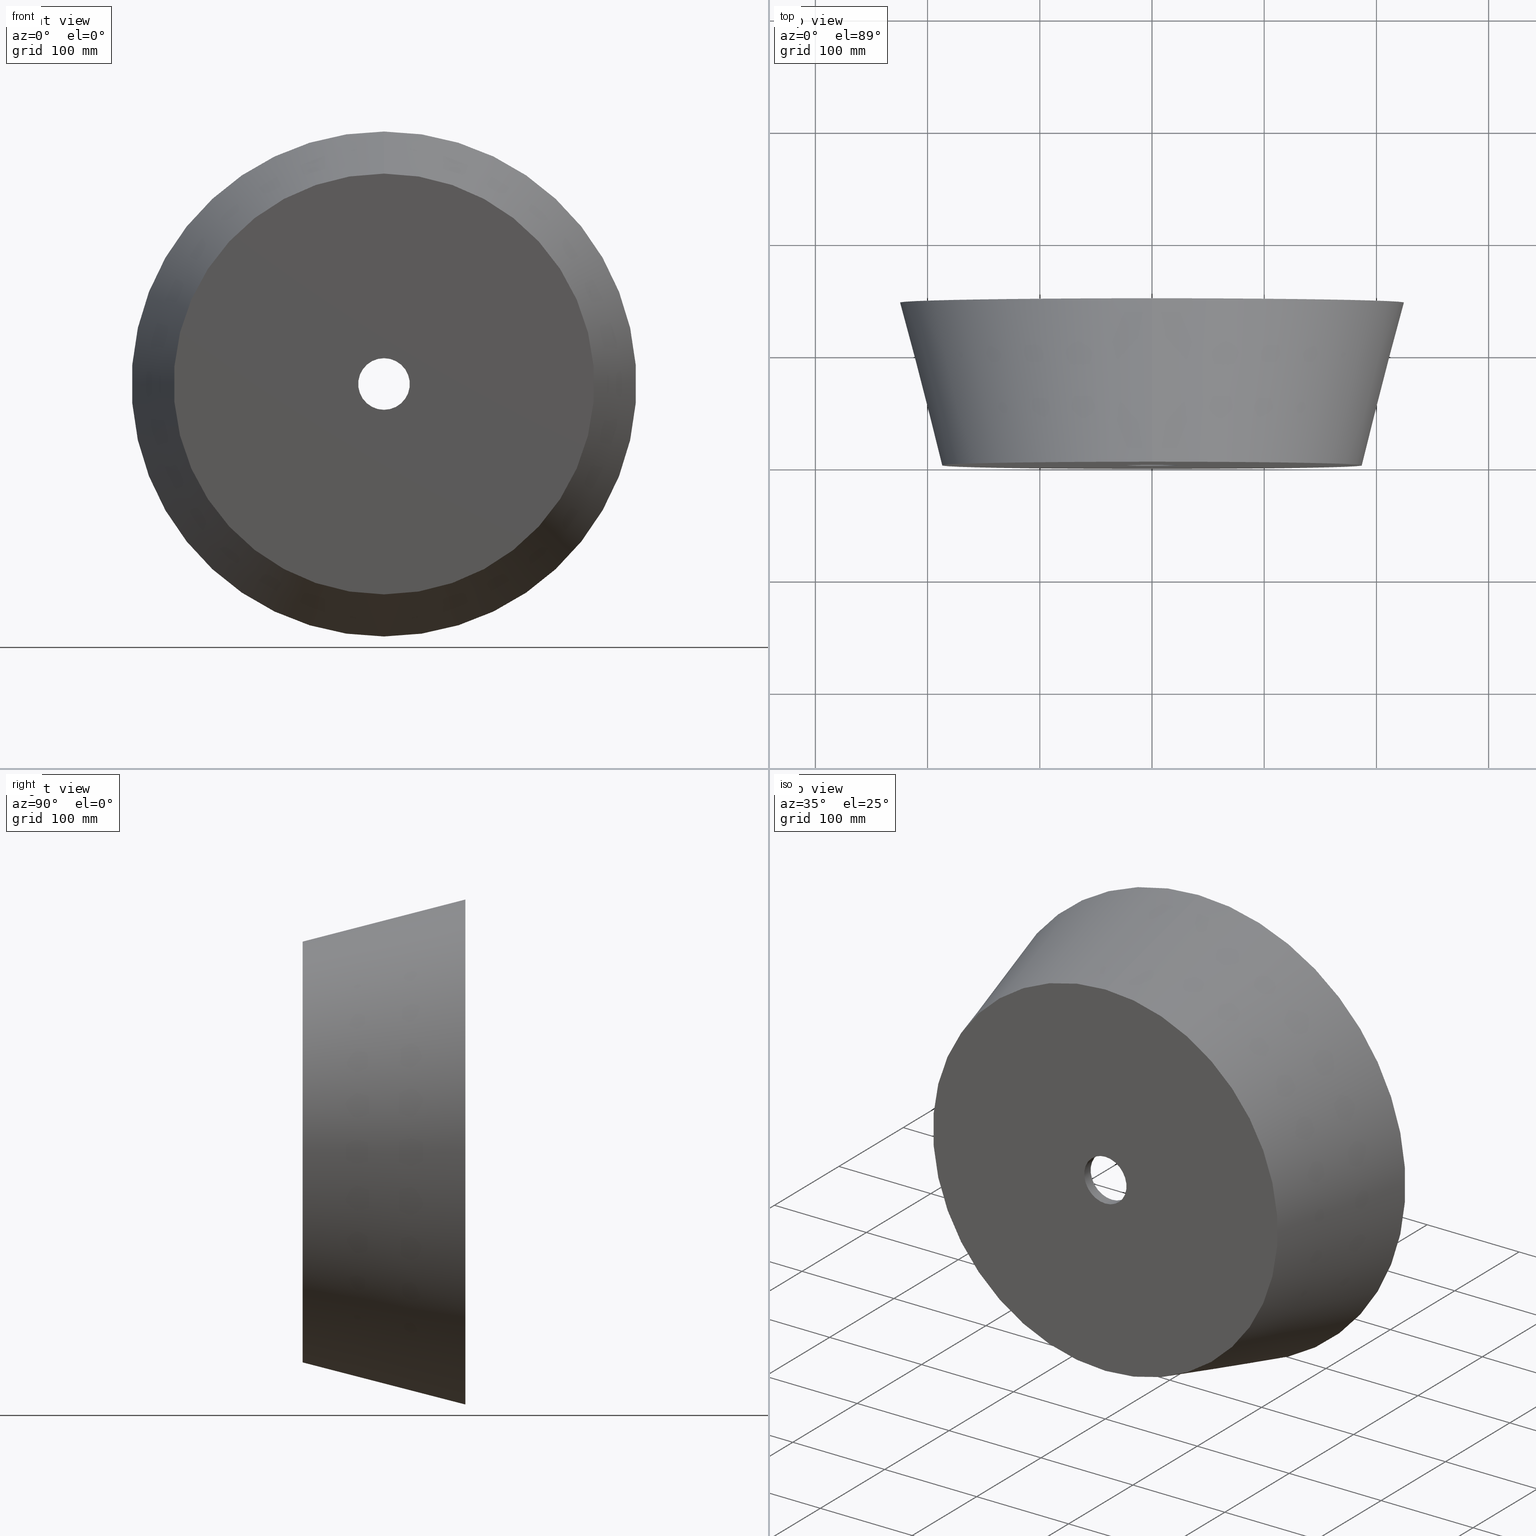
[diagram: canonical four-view strip — front | top / right | iso, engineering-drawing reading convention]
A machine part, canonical four-view strip (front | top / right | iso — engineering-drawing reading convention). The complete STEP part file that produces these views, byte-faithful:
ISO-10303-21;
HEADER;
FILE_DESCRIPTION (( 'STEP AP214' ),
    '1' );
FILE_NAME ('D600.STEP',
    '2018-06-29T09:24:52',
    ( '' ),
    ( '' ),
    'SwSTEP 2.0',
    'SolidWorks 2017',
    '' );
FILE_SCHEMA (( 'AUTOMOTIVE_DESIGN' ));
ENDSEC;

DATA;
#1 = DIRECTION ( 'NONE',  ( -0.0000000000000000000, -1.000000000000000000, -0.0000000000000000000 ) ) ;
#2 = EDGE_CURVE ( 'NONE', #60, #239, #303, .T. ) ;
#3 = CARTESIAN_POINT ( 'NONE',  ( 0.0000000000000000000, 144.9999999999999700, -210.0000000000000300 ) ) ;
#4 = ORIENTED_EDGE ( 'NONE', *, *, #281, .T. ) ;
#5 = DIRECTION ( 'NONE',  ( 0.0000000000000000000, 0.0000000000000000000, -1.000000000000000000 ) ) ;
#6 = ORIENTED_EDGE ( 'NONE', *, *, #195, .T. ) ;
#7 = APPLICATION_CONTEXT ( 'automotive_design' ) ;
#8 =( GEOMETRIC_REPRESENTATION_CONTEXT ( 3 ) GLOBAL_UNCERTAINTY_ASSIGNED_CONTEXT ( ( #227 ) ) GLOBAL_UNIT_ASSIGNED_CONTEXT ( ( #77, #276, #217 ) ) REPRESENTATION_CONTEXT ( 'NONE', 'WORKASPACE' ) );
#9 = CIRCLE ( 'NONE', #97, 210.0000000000000300 ) ;
#10 = FACE_OUTER_BOUND ( 'NONE', #194, .T. ) ;
#11 = AXIS2_PLACEMENT_3D ( 'NONE', #330, #200, #170 ) ;
#12 = DIRECTION ( 'NONE',  ( -0.0000000000000000000, -1.000000000000000000, -0.0000000000000000000 ) ) ;
#13 = DIRECTION ( 'NONE',  ( -0.0000000000000000000, -1.000000000000000000, -0.0000000000000000000 ) ) ;
#14 = DIRECTION ( 'NONE',  ( 0.0000000000000000000, 0.0000000000000000000, 1.000000000000000000 ) ) ;
#15 = PRODUCT_DEFINITION ( 'UNKNOWN', '', #27, #55 ) ;
#16 = FACE_BOUND ( 'NONE', #270, .T. ) ;
#17 = VERTEX_POINT ( 'NONE', #246 ) ;
#18 = CARTESIAN_POINT ( 'NONE',  ( 0.0000000000000000000, 144.9999999999999400, 0.0000000000000000000 ) ) ;
#19 = AXIS2_PLACEMENT_3D ( 'NONE', #187, #72, #327 ) ;
#20 = DIRECTION ( 'NONE',  ( 0.0000000000000000000, 1.000000000000000000, 0.0000000000000000000 ) ) ;
#21 = ORIENTED_EDGE ( 'NONE', *, *, #40, .T. ) ;
#22 = DIRECTION ( 'NONE',  ( 0.0000000000000000000, 0.0000000000000000000, -1.000000000000000000 ) ) ;
#23 = CARTESIAN_POINT ( 'NONE',  ( 2.755455298081544900E-014, 144.9999999999999400, -225.0000000000000300 ) ) ;
#24 = EDGE_CURVE ( 'NONE', #198, #112, #108, .T. ) ;
#25 = CARTESIAN_POINT ( 'NONE',  ( 0.0000000000000000000, 9.999999999999992900, 0.0000000000000000000 ) ) ;
#26 = EDGE_LOOP ( 'NONE', ( #182, #241, #324, #176 ) ) ;
#27 = PRODUCT_DEFINITION_FORMATION_WITH_SPECIFIED_SOURCE ( 'ANY', '', #53, .NOT_KNOWN. ) ;
#28 = PRESENTATION_STYLE_ASSIGNMENT (( #208 ) ) ;
#29 = DIRECTION ( 'NONE',  ( 3.066305214852269800E-017, 0.9681469116116011600, -0.2503828219685178500 ) ) ;
#30 = DIRECTION ( 'NONE',  ( -0.0000000000000000000, -1.000000000000000000, -0.0000000000000000000 ) ) ;
#31 = AXIS2_PLACEMENT_3D ( 'NONE', #18, #171, #39 ) ;
#32 = EDGE_LOOP ( 'NONE', ( #212, #4, #35, #292 ) ) ;
#33 = MECHANICAL_DESIGN_GEOMETRIC_PRESENTATION_REPRESENTATION (  '', ( #222 ), #8 ) ;
#34 = ORIENTED_EDGE ( 'NONE', *, *, #304, .F. ) ;
#35 = ORIENTED_EDGE ( 'NONE', *, *, #78, .T. ) ;
#36 = CARTESIAN_POINT ( 'NONE',  ( 0.0000000000000000000, 0.0000000000000000000, 0.0000000000000000000 ) ) ;
#37 = FACE_OUTER_BOUND ( 'NONE', #234, .T. ) ;
#38 = ADVANCED_FACE ( 'NONE', ( #183 ), #312, .T. ) ;
#39 = DIRECTION ( 'NONE',  ( 0.0000000000000000000, 0.0000000000000000000, 1.000000000000000000 ) ) ;
#40 = EDGE_CURVE ( 'NONE', #309, #60, #128, .T. ) ;
#41 = CIRCLE ( 'NONE', #107, 23.00000000000000000 ) ;
#42 = AXIS2_PLACEMENT_3D ( 'NONE', #76, #159, #186 ) ;
#43 = SURFACE_SIDE_STYLE ('',( #283 ) ) ;
#44 = ORIENTED_EDGE ( 'NONE', *, *, #310, .F. ) ;
#45 = EDGE_CURVE ( 'NONE', #151, #162, #87, .T. ) ;
#46 = CIRCLE ( 'NONE', #42, 187.5000000000000000 ) ;
#47 = EDGE_CURVE ( 'NONE', #169, #199, #61, .T. ) ;
#48 = DIRECTION ( 'NONE',  ( 0.0000000000000000000, 1.000000000000000000, 0.0000000000000000000 ) ) ;
#49 = CARTESIAN_POINT ( 'NONE',  ( 2.816687638038912400E-015, 0.0000000000000000000, 23.00000000000000000 ) ) ;
#50 = EDGE_CURVE ( 'NONE', #162, #112, #157, .T. ) ;
#51 = PRODUCT_DEFINITION_SHAPE ( 'NONE', 'NONE',  #213 ) ;
#52 = TOROIDAL_SURFACE ( 'NONE', #320, 34.91753592594194800, 185.1154769049753700 ) ;
#53 = PRODUCT ( 'D600', 'D600', '', ( #308 ) ) ;
#54 = ORIENTED_EDGE ( 'NONE', *, *, #134, .T. ) ;
#55 = PRODUCT_DEFINITION_CONTEXT ( 'detailed design', #133, 'design' ) ;
#56 = COLOUR_RGB ( '',1.000000000000000000, 1.000000000000000000, 1.000000000000000000 ) ;
#57 = MANIFOLD_SOLID_BREP ( 'Rotation1', #106 ) ;
#58 = APPLICATION_PROTOCOL_DEFINITION ( 'draft international standard', 'automotive_design', 1998, #229 ) ;
#59 = PRODUCT_CONTEXT ( 'NONE', #7, 'mechanical' ) ;
#60 = VERTEX_POINT ( 'NONE', #279 ) ;
#61 = LINE ( 'NONE', #311, #85 ) ;
#62 = EDGE_CURVE ( 'NONE', #199, #216, #41, .T. ) ;
#63 = CIRCLE ( 'NONE', #185, 225.0000000000000300 ) ;
#64 = PRESENTATION_LAYER_ASSIGNMENT (  '', '', ( #172 ) ) ;
#65 = CARTESIAN_POINT ( 'NONE',  ( 2.816687638038912400E-015, 0.0000000000000000000, 23.00000000000000000 ) ) ;
#66 = DIRECTION ( 'NONE',  ( -0.0000000000000000000, -1.000000000000000000, -0.0000000000000000000 ) ) ;
#67 = AXIS2_PLACEMENT_3D ( 'NONE', #291, #318, #14 ) ;
#68 = EDGE_LOOP ( 'NONE', ( #189, #264, #244, #192 ) ) ;
#69 = CARTESIAN_POINT ( 'NONE',  ( 2.816687638038912400E-015, 9.999999999999992900, -23.00000000000000000 ) ) ;
#70 =( LENGTH_UNIT ( ) NAMED_UNIT ( * ) SI_UNIT ( .MILLI., .METRE. ) );
#71 = CONICAL_SURFACE ( 'NONE', #297, 225.0000000000000300, 0.2530756521646025900 ) ;
#72 = DIRECTION ( 'NONE',  ( 0.0000000000000000000, 1.000000000000000000, 0.0000000000000000000 ) ) ;
#73 = PRODUCT_DEFINITION_FORMATION_WITH_SPECIFIED_SOURCE ( 'ANY', '', #221, .NOT_KNOWN. ) ;
#74 = CARTESIAN_POINT ( 'NONE',  ( 0.0000000000000000000, 9.999999999999992900, -23.00000000000000000 ) ) ;
#75 = VERTEX_POINT ( 'NONE', #197 ) ;
#76 = CARTESIAN_POINT ( 'NONE',  ( 0.0000000000000000000, -2.081668171172168500E-014, 0.0000000000000000000 ) ) ;
#77 =( LENGTH_UNIT ( ) NAMED_UNIT ( * ) SI_UNIT ( .MILLI., .METRE. ) );
#78 = EDGE_CURVE ( 'NONE', #17, #239, #63, .T. ) ;
#79 = PRESENTATION_STYLE_ASSIGNMENT (( #300 ) ) ;
#80 = FACE_OUTER_BOUND ( 'NONE', #90, .T. ) ;
#81 = AXIS2_PLACEMENT_3D ( 'NONE', #99, #102, #317 ) ;
#82 = DIRECTION ( 'NONE',  ( -0.0000000000000000000, -1.000000000000000000, -0.0000000000000000000 ) ) ;
#83 = EDGE_CURVE ( 'NONE', #151, #216, #123, .T. ) ;
#84 = CIRCLE ( 'NONE', #178, 185.1154769049753700 ) ;
#85 = VECTOR ( 'NONE', #259, 1000.000000000000000 ) ;
#86 = MECHANICAL_DESIGN_GEOMETRIC_PRESENTATION_REPRESENTATION (  '', ( #172 ), #173 ) ;
#87 = LINE ( 'NONE', #296, #299 ) ;
#88 = CARTESIAN_POINT ( 'NONE',  ( 0.0000000000000000000, 144.9999999999999400, 225.0000000000000300 ) ) ;
#89 = ADVANCED_FACE ( 'NONE', ( #16, #37 ), #93, .F. ) ;
#90 = EDGE_LOOP ( 'NONE', ( #254, #136, #158, #95 ) ) ;
#91 = EDGE_CURVE ( 'NONE', #169, #151, #250, .T. ) ;
#92 = CARTESIAN_POINT ( 'NONE',  ( -225.0000000000000300, 144.9999999999999700, 0.0000000000000000000 ) ) ;
#93 = PLANE ( 'NONE',  #109 ) ;
#94 = EDGE_CURVE ( 'NONE', #169, #112, #237, .T. ) ;
#95 = ORIENTED_EDGE ( 'NONE', *, *, #257, .F. ) ;
#96 = FACE_OUTER_BOUND ( 'NONE', #205, .T. ) ;
#97 = AXIS2_PLACEMENT_3D ( 'NONE', #290, #13, #331 ) ;
#98 = CARTESIAN_POINT ( 'NONE',  ( 0.0000000000000000000, 19.99999999999999300, 0.0000000000000000000 ) ) ;
#99 = CARTESIAN_POINT ( 'NONE',  ( 0.0000000000000000000, 0.0000000000000000000, 0.0000000000000000000 ) ) ;
#100 = PRODUCT_RELATED_PRODUCT_CATEGORY ( 'part', '', ( #53 ) ) ;
#101 = VECTOR ( 'NONE', #225, 1000.000000000000200 ) ;
#102 = DIRECTION ( 'NONE',  ( -0.0000000000000000000, -1.000000000000000000, -0.0000000000000000000 ) ) ;
#103 = DIRECTION ( 'NONE',  ( 0.0000000000000000000, 0.0000000000000000000, -1.000000000000000000 ) ) ;
#104 = FILL_AREA_STYLE ('',( #289 ) ) ;
#105 = FACE_OUTER_BOUND ( 'NONE', #26, .T. ) ;
#106 = CLOSED_SHELL ( 'NONE', ( #322, #201, #38, #265, #141, #262, #164, #89, #115, #130 ) ) ;
#107 = AXIS2_PLACEMENT_3D ( 'NONE', #148, #1, #294 ) ;
#108 = CIRCLE ( 'NONE', #67, 185.1154769049753700 ) ;
#109 = AXIS2_PLACEMENT_3D ( 'NONE', #111, #113, #147 ) ;
#110 = APPLICATION_PROTOCOL_DEFINITION ( 'draft international standard', 'automotive_design', 1998, #133 ) ;
#111 = CARTESIAN_POINT ( 'NONE',  ( -23.00000000000000000, -1.040834085586084300E-014, 0.0000000000000000000 ) ) ;
#112 = VERTEX_POINT ( 'NONE', #238 ) ;
#113 = DIRECTION ( 'NONE',  ( 0.0000000000000000000, 1.000000000000000000, 0.0000000000000000000 ) ) ;
#114 = CARTESIAN_POINT ( 'NONE',  ( 0.0000000000000000000, 144.9999999999999400, 0.0000000000000000000 ) ) ;
#115 = ADVANCED_FACE ( 'NONE', ( #96 ), #245, .F. ) ;
#116 = SURFACE_STYLE_FILL_AREA ( #104 ) ;
#117 = CARTESIAN_POINT ( 'NONE',  ( 0.0000000000000000000, 0.0000000000000000000, 0.0000000000000000000 ) ) ;
#118 = DIRECTION ( 'NONE',  ( -0.0000000000000000000, -1.000000000000000000, -0.0000000000000000000 ) ) ;
#119 = ORIENTED_EDGE ( 'NONE', *, *, #83, .T. ) ;
#120 = FACE_BOUND ( 'NONE', #280, .T. ) ;
#121 = DIRECTION ( 'NONE',  ( 0.0000000000000000000, 0.0000000000000000000, -1.000000000000000000 ) ) ;
#122 = DIRECTION ( 'NONE',  ( 0.0000000000000000000, 0.0000000000000000000, 1.000000000000000000 ) ) ;
#123 = LINE ( 'NONE', #65, #255 ) ;
#124 = DIRECTION ( 'NONE',  ( 0.0000000000000000000, 0.0000000000000000000, -1.000000000000000000 ) ) ;
#125 = CONICAL_SURFACE ( 'NONE', #248, 23.00000000000000000, 0.8726646259971591000 ) ;
#126 = EDGE_CURVE ( 'NONE', #75, #162, #84, .T. ) ;
#127 = ORIENTED_EDGE ( 'NONE', *, *, #134, .F. ) ;
#128 = CIRCLE ( 'NONE', #11, 187.5000000000000000 ) ;
#129 = FACE_OUTER_BOUND ( 'NONE', #218, .T. ) ;
#130 = ADVANCED_FACE ( 'NONE', ( #80 ), #125, .F. ) ;
#131 = CYLINDRICAL_SURFACE ( 'NONE', #140, 23.00000000000000000 ) ;
#132 = CIRCLE ( 'NONE', #190, 210.0000000000000300 ) ;
#133 = APPLICATION_CONTEXT ( 'automotive_design' ) ;
#134 = EDGE_CURVE ( 'NONE', #239, #17, #181, .T. ) ;
#135 = DIRECTION ( 'NONE',  ( -0.0000000000000000000, -1.000000000000000000, -0.0000000000000000000 ) ) ;
#136 = ORIENTED_EDGE ( 'NONE', *, *, #91, .T. ) ;
#137 = DIRECTION ( 'NONE',  ( -0.0000000000000000000, -1.000000000000000000, -0.0000000000000000000 ) ) ;
#138 = DIRECTION ( 'NONE',  ( 0.0000000000000000000, 0.0000000000000000000, -1.000000000000000000 ) ) ;
#139 = DIRECTION ( 'NONE',  ( 0.0000000000000000000, 0.0000000000000000000, -1.000000000000000000 ) ) ;
#140 = AXIS2_PLACEMENT_3D ( 'NONE', #117, #235, #149 ) ;
#141 = ADVANCED_FACE ( 'NONE', ( #105 ), #203, .F. ) ;
#142 =( NAMED_UNIT ( * ) SI_UNIT ( $, .STERADIAN. ) SOLID_ANGLE_UNIT ( ) );
#143 = AXIS2_PLACEMENT_3D ( 'NONE', #36, #233, #321 ) ;
#144 = DIRECTION ( 'NONE',  ( 9.381338752702686400E-017, 0.6427876096865436900, -0.7660444431189743500 ) ) ;
#145 =( NAMED_UNIT ( * ) PLANE_ANGLE_UNIT ( ) SI_UNIT ( $, .RADIAN. ) );
#146 = CARTESIAN_POINT ( 'NONE',  ( 4.276164860581751400E-015, 205.1154769049753400, 34.91753592594194800 ) ) ;
#147 = DIRECTION ( 'NONE',  ( 0.0000000000000000000, -0.0000000000000000000, 1.000000000000000000 ) ) ;
#148 = CARTESIAN_POINT ( 'NONE',  ( 0.0000000000000000000, 0.0000000000000000000, 0.0000000000000000000 ) ) ;
#149 = DIRECTION ( 'NONE',  ( 0.0000000000000000000, 0.0000000000000000000, -1.000000000000000000 ) ) ;
#150 = EDGE_LOOP ( 'NONE', ( #307, #44, #302, #54 ) ) ;
#151 = VERTEX_POINT ( 'NONE', #163 ) ;
#152 = DIRECTION ( 'NONE',  ( 0.0000000000000000000, 0.0000000000000000000, -1.000000000000000000 ) ) ;
#153 = SHAPE_DEFINITION_REPRESENTATION ( #51, #223 ) ;
#154 = PRODUCT_DEFINITION_SHAPE ( 'NONE', 'NONE',  #15 ) ;
#155 =( GEOMETRIC_REPRESENTATION_CONTEXT ( 3 ) GLOBAL_UNCERTAINTY_ASSIGNED_CONTEXT ( ( #267 ) ) GLOBAL_UNIT_ASSIGNED_CONTEXT ( ( #70, #145, #142 ) ) REPRESENTATION_CONTEXT ( 'NONE', 'WORKASPACE' ) );
#156 = APPLICATION_PROTOCOL_DEFINITION ( 'draft international standard', 'automotive_design', 1998, #180 ) ;
#157 = CIRCLE ( 'NONE', #242, 34.91753592594196200 ) ;
#158 = ORIENTED_EDGE ( 'NONE', *, *, #45, .T. ) ;
#159 = DIRECTION ( 'NONE',  ( -0.0000000000000000000, -1.000000000000000000, -0.0000000000000000000 ) ) ;
#160 = DIRECTION ( 'NONE',  ( -0.0000000000000000000, -1.000000000000000000, -0.0000000000000000000 ) ) ;
#161 = CIRCLE ( 'NONE', #215, 23.00000000000000000 ) ;
#162 = VERTEX_POINT ( 'NONE', #293 ) ;
#163 = CARTESIAN_POINT ( 'NONE',  ( 2.816687638038912400E-015, 9.999999999999992900, 23.00000000000000000 ) ) ;
#164 = ADVANCED_FACE ( 'NONE', ( #251 ), #71, .T. ) ;
#165 = DIRECTION ( 'NONE',  ( 1.000000000000000000, 0.0000000000000000000, -1.224646799147353200E-016 ) ) ;
#166 = PRESENTATION_LAYER_ASSIGNMENT (  '', '', ( #222 ) ) ;
#167 = DIRECTION ( 'NONE',  ( 0.0000000000000000000, 0.0000000000000000000, 1.000000000000000000 ) ) ;
#168 = CARTESIAN_POINT ( 'NONE',  ( 0.0000000000000000000, 205.1154769049753400, 0.0000000000000000000 ) ) ;
#169 = VERTEX_POINT ( 'NONE', #74 ) ;
#170 = DIRECTION ( 'NONE',  ( 0.0000000000000000000, 0.0000000000000000000, -1.000000000000000000 ) ) ;
#171 = DIRECTION ( 'NONE',  ( 0.0000000000000000000, 1.000000000000000000, 0.0000000000000000000 ) ) ;
#172 = STYLED_ITEM ( 'NONE', ( #28 ), #57 ) ;
#173 =( GEOMETRIC_REPRESENTATION_CONTEXT ( 3 ) GLOBAL_UNCERTAINTY_ASSIGNED_CONTEXT ( ( #273 ) ) GLOBAL_UNIT_ASSIGNED_CONTEXT ( ( #191, #174, #231 ) ) REPRESENTATION_CONTEXT ( 'NONE', 'WORKASPACE' ) );
#174 =( NAMED_UNIT ( * ) PLANE_ANGLE_UNIT ( ) SI_UNIT ( $, .RADIAN. ) );
#175 = ORIENTED_EDGE ( 'NONE', *, *, #94, .T. ) ;
#176 = ORIENTED_EDGE ( 'NONE', *, *, #257, .T. ) ;
#177 = ORIENTED_EDGE ( 'NONE', *, *, #47, .F. ) ;
#178 = AXIS2_PLACEMENT_3D ( 'NONE', #146, #165, #323 ) ;
#179 = EDGE_CURVE ( 'NONE', #151, #169, #161, .T. ) ;
#180 = APPLICATION_CONTEXT ( 'automotive_design' ) ;
#181 = CIRCLE ( 'NONE', #263, 225.0000000000000300 ) ;
#182 = ORIENTED_EDGE ( 'NONE', *, *, #126, .F. ) ;
#183 = FACE_OUTER_BOUND ( 'NONE', #32, .T. ) ;
#184 = FILL_AREA_STYLE ('',( #305 ) ) ;
#185 = AXIS2_PLACEMENT_3D ( 'NONE', #114, #261, #139 ) ;
#186 = DIRECTION ( 'NONE',  ( 0.0000000000000000000, 0.0000000000000000000, -1.000000000000000000 ) ) ;
#187 = CARTESIAN_POINT ( 'NONE',  ( 0.0000000000000000000, 9.999999999999992900, 0.0000000000000000000 ) ) ;
#188 = ORIENTED_EDGE ( 'NONE', *, *, #83, .F. ) ;
#189 = ORIENTED_EDGE ( 'NONE', *, *, #195, .F. ) ;
#190 = AXIS2_PLACEMENT_3D ( 'NONE', #211, #160, #22 ) ;
#191 =( LENGTH_UNIT ( ) NAMED_UNIT ( * ) SI_UNIT ( .MILLI., .METRE. ) );
#192 = ORIENTED_EDGE ( 'NONE', *, *, #24, .F. ) ;
#193 = DIRECTION ( 'NONE',  ( -0.0000000000000000000, -1.000000000000000000, -0.0000000000000000000 ) ) ;
#194 = EDGE_LOOP ( 'NONE', ( #236, #119, #287, #177 ) ) ;
#195 = EDGE_CURVE ( 'NONE', #75, #198, #132, .T. ) ;
#196 = DIRECTION ( 'NONE',  ( 0.0000000000000000000, 0.0000000000000000000, -1.000000000000000000 ) ) ;
#197 = CARTESIAN_POINT ( 'NONE',  ( 2.571758278209442200E-014, 144.9999999999999700, 210.0000000000000300 ) ) ;
#198 = VERTEX_POINT ( 'NONE', #3 ) ;
#199 = VERTEX_POINT ( 'NONE', #272 ) ;
#200 = DIRECTION ( 'NONE',  ( -0.0000000000000000000, -1.000000000000000000, -0.0000000000000000000 ) ) ;
#201 = ADVANCED_FACE ( 'NONE', ( #10 ), #131, .F. ) ;
#202 = ORIENTED_EDGE ( 'NONE', *, *, #179, .T. ) ;
#203 = TOROIDAL_SURFACE ( 'NONE', #219, 34.91753592594194800, 185.1154769049753700 ) ;
#204 = COLOUR_RGB ( '',1.000000000000000000, 1.000000000000000000, 1.000000000000000000 ) ;
#205 = EDGE_LOOP ( 'NONE', ( #188, #214, #271, #315 ) ) ;
#206 = EDGE_LOOP ( 'NONE', ( #202, #175, #240, #277 ) ) ;
#207 = CIRCLE ( 'NONE', #285, 23.00000000000000000 ) ;
#208 = SURFACE_STYLE_USAGE ( .BOTH. , #230 ) ;
#209 = DIRECTION ( 'NONE',  ( 0.0000000000000000000, 0.0000000000000000000, 1.000000000000000000 ) ) ;
#210 = FACE_OUTER_BOUND ( 'NONE', #206, .T. ) ;
#211 = CARTESIAN_POINT ( 'NONE',  ( 0.0000000000000000000, 144.9999999999999700, 0.0000000000000000000 ) ) ;
#212 = ORIENTED_EDGE ( 'NONE', *, *, #40, .F. ) ;
#213 = PRODUCT_DEFINITION ( 'UNKNOWN', '', #73, #326 ) ;
#214 = ORIENTED_EDGE ( 'NONE', *, *, #91, .F. ) ;
#215 = AXIS2_PLACEMENT_3D ( 'NONE', #226, #137, #103 ) ;
#216 = VERTEX_POINT ( 'NONE', #49 ) ;
#217 =( NAMED_UNIT ( * ) SI_UNIT ( $, .STERADIAN. ) SOLID_ANGLE_UNIT ( ) );
#218 = EDGE_LOOP ( 'NONE', ( #127, #282 ) ) ;
#219 = AXIS2_PLACEMENT_3D ( 'NONE', #168, #66, #266 ) ;
#220 = FACE_OUTER_BOUND ( 'NONE', #68, .T. ) ;
#221 = PRODUCT ( 'D600', 'D600', '', ( #59 ) ) ;
#222 = STYLED_ITEM ( 'NONE', ( #79 ), #223 ) ;
#223 = ADVANCED_BREP_SHAPE_REPRESENTATION ( 'D600', ( #57, #143 ), #155 ) ;
#224 = AXIS2_PLACEMENT_3D ( 'NONE', #306, #135, #196 ) ;
#225 = DIRECTION ( 'NONE',  ( 0.0000000000000000000, 0.9681469116116011600, 0.2503828219685178500 ) ) ;
#226 = CARTESIAN_POINT ( 'NONE',  ( 0.0000000000000000000, 9.999999999999992900, 0.0000000000000000000 ) ) ;
#227 = UNCERTAINTY_MEASURE_WITH_UNIT (LENGTH_MEASURE( 1.000000000000000100E-005 ), #77, 'distance_accuracy_value', 'NONE');
#228 = VECTOR ( 'NONE', #144, 999.9999999999998900 ) ;
#229 = APPLICATION_CONTEXT ( 'automotive_design' ) ;
#230 = SURFACE_SIDE_STYLE ('',( #116 ) ) ;
#231 =( NAMED_UNIT ( * ) SI_UNIT ( $, .STERADIAN. ) SOLID_ANGLE_UNIT ( ) );
#232 = ORIENTED_EDGE ( 'NONE', *, *, #310, .T. ) ;
#233 = DIRECTION ( 'NONE',  ( 0.0000000000000000000, 0.0000000000000000000, 1.000000000000000000 ) ) ;
#234 = EDGE_LOOP ( 'NONE', ( #232, #21 ) ) ;
#235 = DIRECTION ( 'NONE',  ( -0.0000000000000000000, -1.000000000000000000, -0.0000000000000000000 ) ) ;
#236 = ORIENTED_EDGE ( 'NONE', *, *, #179, .F. ) ;
#237 = LINE ( 'NONE', #69, #228 ) ;
#238 = CARTESIAN_POINT ( 'NONE',  ( 0.0000000000000000000, 19.99999999999999300, -34.91753592594196200 ) ) ;
#239 = VERTEX_POINT ( 'NONE', #88 ) ;
#240 = ORIENTED_EDGE ( 'NONE', *, *, #50, .F. ) ;
#241 = ORIENTED_EDGE ( 'NONE', *, *, #313, .F. ) ;
#242 = AXIS2_PLACEMENT_3D ( 'NONE', #316, #82, #121 ) ;
#243 = DIRECTION ( 'NONE',  ( -0.0000000000000000000, -1.000000000000000000, -0.0000000000000000000 ) ) ;
#244 = ORIENTED_EDGE ( 'NONE', *, *, #50, .T. ) ;
#245 = CYLINDRICAL_SURFACE ( 'NONE', #81, 23.00000000000000000 ) ;
#246 = CARTESIAN_POINT ( 'NONE',  ( 2.755455298081544900E-014, 144.9999999999999400, -225.0000000000000300 ) ) ;
#247 = DIRECTION ( 'NONE',  ( 0.0000000000000000000, -1.000000000000000000, -0.0000000000000000000 ) ) ;
#248 = AXIS2_PLACEMENT_3D ( 'NONE', #25, #48, #209 ) ;
#249 = CIRCLE ( 'NONE', #284, 34.91753592594196200 ) ;
#250 = CIRCLE ( 'NONE', #224, 23.00000000000000000 ) ;
#251 = FACE_OUTER_BOUND ( 'NONE', #150, .T. ) ;
#252 = DIRECTION ( 'NONE',  ( 1.000000000000000000, 0.0000000000000000000, 0.0000000000000000000 ) ) ;
#253 = CARTESIAN_POINT ( 'NONE',  ( 0.0000000000000000000, 144.9999999999999400, 225.0000000000000300 ) ) ;
#254 = ORIENTED_EDGE ( 'NONE', *, *, #94, .F. ) ;
#255 = VECTOR ( 'NONE', #118, 1000.000000000000000 ) ;
#256 = CARTESIAN_POINT ( 'NONE',  ( 2.525834023241416200E-014, -2.081668171172168500E-014, -187.5000000000000000 ) ) ;
#257 = EDGE_CURVE ( 'NONE', #112, #162, #249, .T. ) ;
#258 = APPLICATION_PROTOCOL_DEFINITION ( 'draft international standard', 'automotive_design', 1998, #7 ) ;
#259 = DIRECTION ( 'NONE',  ( -0.0000000000000000000, -1.000000000000000000, -0.0000000000000000000 ) ) ;
#260 = DIRECTION ( 'NONE',  ( 0.0000000000000000000, 0.0000000000000000000, -1.000000000000000000 ) ) ;
#261 = DIRECTION ( 'NONE',  ( -0.0000000000000000000, -1.000000000000000000, -0.0000000000000000000 ) ) ;
#262 = ADVANCED_FACE ( 'NONE', ( #129, #120 ), #329, .F. ) ;
#263 = AXIS2_PLACEMENT_3D ( 'NONE', #288, #243, #260 ) ;
#264 = ORIENTED_EDGE ( 'NONE', *, *, #126, .T. ) ;
#265 = ADVANCED_FACE ( 'NONE', ( #220 ), #52, .F. ) ;
#266 = DIRECTION ( 'NONE',  ( 0.0000000000000000000, 0.0000000000000000000, -1.000000000000000000 ) ) ;
#267 = UNCERTAINTY_MEASURE_WITH_UNIT (LENGTH_MEASURE( 1.000000000000000100E-005 ), #70, 'distance_accuracy_value', 'NONE');
#268 = AXIS2_PLACEMENT_3D ( 'NONE', #92, #247, #5 ) ;
#269 = CARTESIAN_POINT ( 'NONE',  ( 0.0000000000000000000, 0.0000000000000000000, 0.0000000000000000000 ) ) ;
#270 = EDGE_LOOP ( 'NONE', ( #295, #34 ) ) ;
#271 = ORIENTED_EDGE ( 'NONE', *, *, #47, .T. ) ;
#272 = CARTESIAN_POINT ( 'NONE',  ( 0.0000000000000000000, 0.0000000000000000000, -23.00000000000000000 ) ) ;
#273 = UNCERTAINTY_MEASURE_WITH_UNIT (LENGTH_MEASURE( 1.000000000000000100E-005 ), #191, 'distance_accuracy_value', 'NONE');
#274 = DIRECTION ( 'NONE',  ( 0.0000000000000000000, 0.6427876096865436900, 0.7660444431189743500 ) ) ;
#275 = PRODUCT_RELATED_PRODUCT_CATEGORY ( 'part', '', ( #221 ) ) ;
#276 =( NAMED_UNIT ( * ) PLANE_ANGLE_UNIT ( ) SI_UNIT ( $, .RADIAN. ) );
#277 = ORIENTED_EDGE ( 'NONE', *, *, #45, .F. ) ;
#278 = CARTESIAN_POINT ( 'NONE',  ( 0.0000000000000000000, 144.9999999999999400, 0.0000000000000000000 ) ) ;
#279 = CARTESIAN_POINT ( 'NONE',  ( 0.0000000000000000000, -2.081668171172168500E-014, 187.5000000000000000 ) ) ;
#280 = EDGE_LOOP ( 'NONE', ( #286, #6 ) ) ;
#281 = EDGE_CURVE ( 'NONE', #309, #17, #328, .T. ) ;
#282 = ORIENTED_EDGE ( 'NONE', *, *, #78, .F. ) ;
#283 = SURFACE_STYLE_FILL_AREA ( #184 ) ;
#284 = AXIS2_PLACEMENT_3D ( 'NONE', #98, #30, #138 ) ;
#285 = AXIS2_PLACEMENT_3D ( 'NONE', #269, #193, #124 ) ;
#286 = ORIENTED_EDGE ( 'NONE', *, *, #313, .T. ) ;
#287 = ORIENTED_EDGE ( 'NONE', *, *, #304, .T. ) ;
#288 = CARTESIAN_POINT ( 'NONE',  ( 0.0000000000000000000, 144.9999999999999400, 0.0000000000000000000 ) ) ;
#289 = FILL_AREA_STYLE_COLOUR ( '', #56 ) ;
#290 = CARTESIAN_POINT ( 'NONE',  ( 0.0000000000000000000, 144.9999999999999700, 0.0000000000000000000 ) ) ;
#291 = CARTESIAN_POINT ( 'NONE',  ( 0.0000000000000000000, 205.1154769049753400, -34.91753592594194800 ) ) ;
#292 = ORIENTED_EDGE ( 'NONE', *, *, #2, .F. ) ;
#293 = CARTESIAN_POINT ( 'NONE',  ( 1.499687382133808800E-014, 19.99999999999999300, 34.91753592594196200 ) ) ;
#294 = DIRECTION ( 'NONE',  ( 0.0000000000000000000, 0.0000000000000000000, -1.000000000000000000 ) ) ;
#295 = ORIENTED_EDGE ( 'NONE', *, *, #62, .F. ) ;
#296 = CARTESIAN_POINT ( 'NONE',  ( 0.0000000000000000000, 9.999999999999992900, 23.00000000000000000 ) ) ;
#297 = AXIS2_PLACEMENT_3D ( 'NONE', #278, #20, #122 ) ;
#298 = CONICAL_SURFACE ( 'NONE', #19, 23.00000000000000000, 0.8726646259971591000 ) ;
#299 = VECTOR ( 'NONE', #274, 999.9999999999998900 ) ;
#300 = SURFACE_STYLE_USAGE ( .BOTH. , #43 ) ;
#301 = CARTESIAN_POINT ( 'NONE',  ( 0.0000000000000000000, 0.0000000000000000000, 0.0000000000000000000 ) ) ;
#302 = ORIENTED_EDGE ( 'NONE', *, *, #2, .T. ) ;
#303 = LINE ( 'NONE', #253, #101 ) ;
#304 = EDGE_CURVE ( 'NONE', #216, #199, #207, .T. ) ;
#305 = FILL_AREA_STYLE_COLOUR ( '', #204 ) ;
#306 = CARTESIAN_POINT ( 'NONE',  ( 0.0000000000000000000, 9.999999999999992900, 0.0000000000000000000 ) ) ;
#307 = ORIENTED_EDGE ( 'NONE', *, *, #281, .F. ) ;
#308 = PRODUCT_CONTEXT ( 'NONE', #180, 'mechanical' ) ;
#309 = VERTEX_POINT ( 'NONE', #256 ) ;
#310 = EDGE_CURVE ( 'NONE', #60, #309, #46, .T. ) ;
#311 = CARTESIAN_POINT ( 'NONE',  ( 0.0000000000000000000, 0.0000000000000000000, -23.00000000000000000 ) ) ;
#312 = CONICAL_SURFACE ( 'NONE', #31, 225.0000000000000300, 0.2530756521646025900 ) ;
#313 = EDGE_CURVE ( 'NONE', #198, #75, #9, .T. ) ;
#314 = VECTOR ( 'NONE', #29, 1000.000000000000200 ) ;
#315 = ORIENTED_EDGE ( 'NONE', *, *, #62, .T. ) ;
#316 = CARTESIAN_POINT ( 'NONE',  ( 0.0000000000000000000, 19.99999999999999300, 0.0000000000000000000 ) ) ;
#317 = DIRECTION ( 'NONE',  ( 0.0000000000000000000, 0.0000000000000000000, -1.000000000000000000 ) ) ;
#318 = DIRECTION ( 'NONE',  ( -1.000000000000000000, 0.0000000000000000000, 0.0000000000000000000 ) ) ;
#319 = CARTESIAN_POINT ( 'NONE',  ( 0.0000000000000000000, 205.1154769049753400, 0.0000000000000000000 ) ) ;
#320 = AXIS2_PLACEMENT_3D ( 'NONE', #319, #12, #152 ) ;
#321 = DIRECTION ( 'NONE',  ( 1.000000000000000000, 0.0000000000000000000, 0.0000000000000000000 ) ) ;
#322 = ADVANCED_FACE ( 'NONE', ( #210 ), #298, .F. ) ;
#323 = DIRECTION ( 'NONE',  ( -1.224646799147353200E-016, 0.0000000000000000000, -1.000000000000000000 ) ) ;
#324 = ORIENTED_EDGE ( 'NONE', *, *, #24, .T. ) ;
#325 = AXIS2_PLACEMENT_3D ( 'NONE', #301, #167, #252 ) ;
#326 = PRODUCT_DEFINITION_CONTEXT ( 'detailed design', #229, 'design' ) ;
#327 = DIRECTION ( 'NONE',  ( 0.0000000000000000000, 0.0000000000000000000, 1.000000000000000000 ) ) ;
#328 = LINE ( 'NONE', #23, #314 ) ;
#329 = PLANE ( 'NONE',  #268 ) ;
#330 = CARTESIAN_POINT ( 'NONE',  ( 0.0000000000000000000, -2.081668171172168500E-014, 0.0000000000000000000 ) ) ;
#331 = DIRECTION ( 'NONE',  ( 0.0000000000000000000, 0.0000000000000000000, -1.000000000000000000 ) ) ;
ENDSEC;
END-ISO-10303-21;
